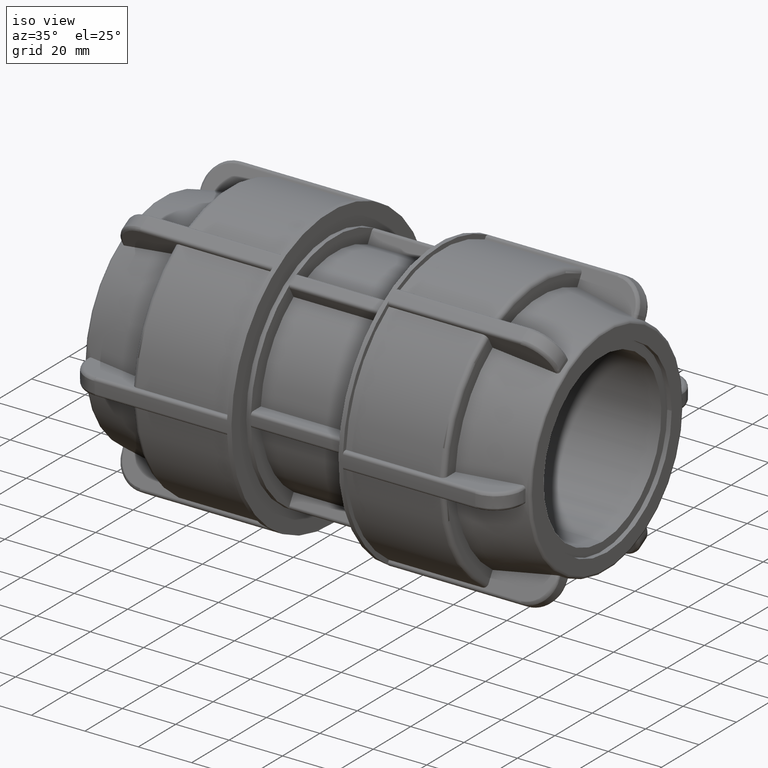
[diagram: clean part render]
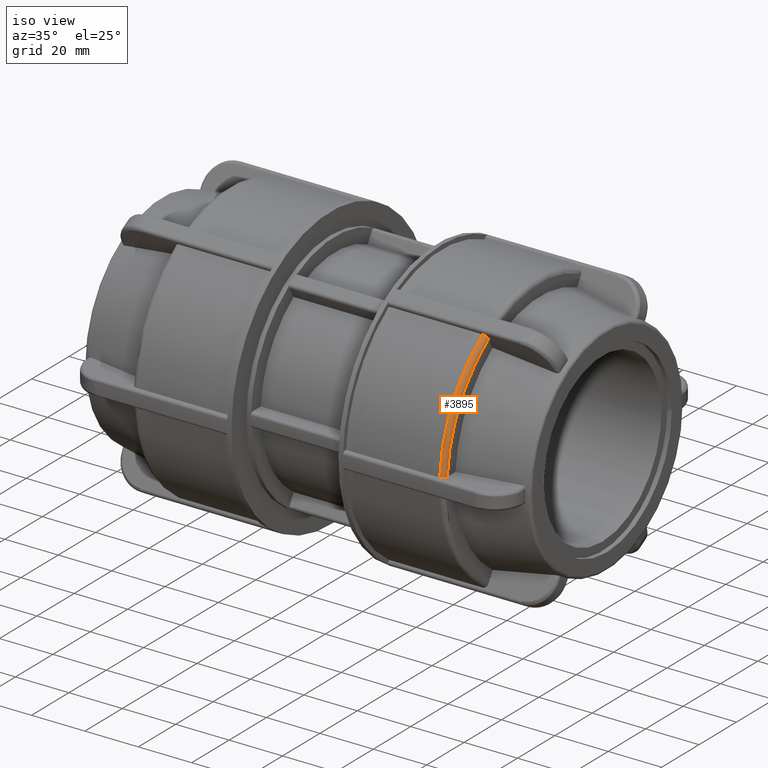
[diagram: same view with one face highlighted and labeled with its STEP entity id]
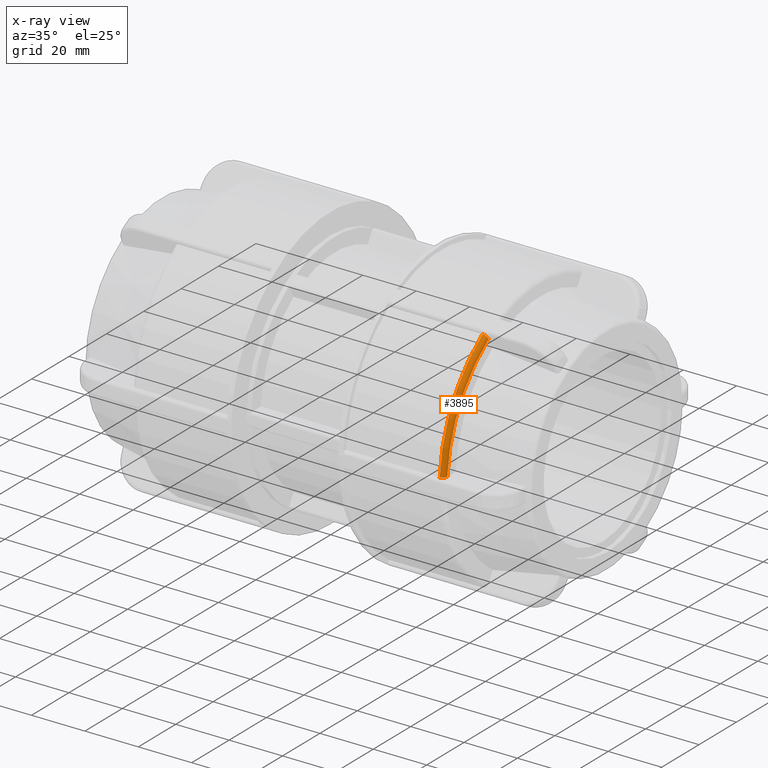
[diagram: x-ray of the same camera — body ghosted, the highlighted face saturated]
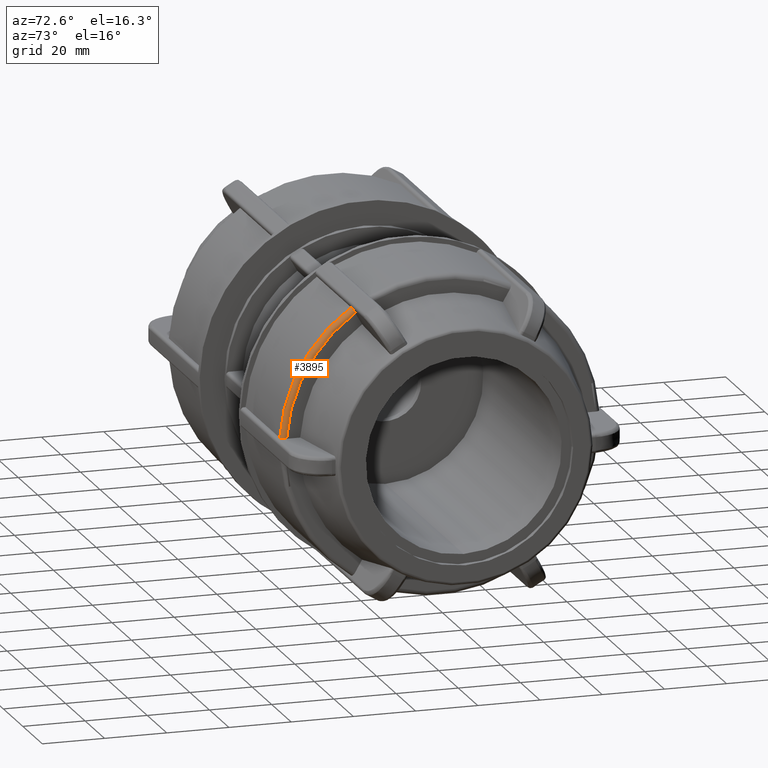
[diagram: same view with one face highlighted and labeled with its STEP entity id]
A machine part, iso view. The second image highlights one B-rep face of the part: STEP entity #3895.
The next image is the same camera in x-ray: the body ghosted, the highlighted face saturated — about 0% of this face is hidden behind the body in this view.
A second angle (auxiliary view) of the same face is appended — the face is thin or edge-on in the first view.
In plain terms, the highlighted toroidal blend (fillet) surface has major radius 49.74 mm and minor (blend) radius 1.67 mm.
Its self-contained STEP definition (entity closure, byte-faithful):
#37=TOROIDAL_SURFACE('',#4320,49.74,1.67);
#142=B_SPLINE_CURVE_WITH_KNOTS('',3,(#7609,#7610,#7611,#7612,#7613,#7614,
#7615,#7616,#7617,#7618),.UNSPECIFIED.,.F.,.F.,(4,2,2,2,4),(-0.247562626783386,
-0.185570297774529,-0.123644029369259,-0.0617922903017217,0.),
 .UNSPECIFIED.);
#152=B_SPLINE_CURVE_WITH_KNOTS('',3,(#7837,#7838,#7839,#7840,#7841,#7842,
#7843,#7844,#7845,#7846),.UNSPECIFIED.,.F.,.F.,(4,2,2,2,4),(0.,0.0617922903017208,
0.123644029369258,0.185570297774529,0.247562626783386),.UNSPECIFIED.);
#509=FACE_OUTER_BOUND('',#761,.T.);
#761=EDGE_LOOP('',(#3464,#3465,#3466,#3467));
#1456=CIRCLE('',#4309,51.41);
#1462=CIRCLE('',#4321,49.74);
#1796=VERTEX_POINT('',#7606);
#1797=VERTEX_POINT('',#7608);
#1824=VERTEX_POINT('',#7834);
#1825=VERTEX_POINT('',#7836);
#2330=EDGE_CURVE('',#1797,#1796,#142,.T.);
#2370=EDGE_CURVE('',#1825,#1824,#152,.T.);
#2397=EDGE_CURVE('',#1796,#1825,#1456,.T.);
#2405=EDGE_CURVE('',#1824,#1797,#1462,.T.);
#3464=ORIENTED_EDGE('',*,*,#2370,.T.);
#3465=ORIENTED_EDGE('',*,*,#2405,.T.);
#3466=ORIENTED_EDGE('',*,*,#2330,.T.);
#3467=ORIENTED_EDGE('',*,*,#2397,.T.);
#3895=ADVANCED_FACE('',(#509),#37,.T.);
#4309=AXIS2_PLACEMENT_3D('',#7923,#5356,#5357);
#4320=AXIS2_PLACEMENT_3D('',#7947,#5379,#5380);
#4321=AXIS2_PLACEMENT_3D('',#7948,#5381,#5382);
#5356=DIRECTION('center_axis',(1.,3.06161699786838E-16,0.));
#5357=DIRECTION('ref_axis',(3.07735423087113E-16,-1.,1.83697019872103E-16));
#5379=DIRECTION('center_axis',(1.,3.06161699786838E-16,0.));
#5380=DIRECTION('ref_axis',(0.,0.,-1.));
#5381=DIRECTION('center_axis',(-1.,-3.06161699786838E-16,0.));
#5382=DIRECTION('ref_axis',(3.06161699786838E-16,-1.,1.83697019872103E-16));
#7606=CARTESIAN_POINT('',(56.78,-28.3846828498371,42.8637128526469));
#7608=CARTESIAN_POINT('',(58.45,-27.5480580838449,41.414636251078));
#7609=CARTESIAN_POINT('Ctrl Pts',(58.45,-27.5480580838449,41.414636251078));
#7610=CARTESIAN_POINT('Ctrl Pts',(58.45,-27.651378632193,41.5935926902828));
#7611=CARTESIAN_POINT('Ctrl Pts',(58.4016935444586,-27.772987912316,41.8042261421276));
#7612=CARTESIAN_POINT('Ctrl Pts',(58.2437741301792,-27.9638292517297,42.1347730381766));
#7613=CARTESIAN_POINT('Ctrl Pts',(58.1062949093139,-28.0668550583607,42.3132189697523));
#7614=CARTESIAN_POINT('Ctrl Pts',(57.8147156802085,-28.2128129567598,42.5660254655455));
#7615=CARTESIAN_POINT('Ctrl Pts',(57.609094446604,-28.2816063254478,42.685179075337));
#7616=CARTESIAN_POINT('Ctrl Pts',(57.2283814630195,-28.3605407597446,42.8218975260057));
#7617=CARTESIAN_POINT('Ctrl Pts',(56.9859743010058,-28.3846828498371,42.8637128526469));
#7618=CARTESIAN_POINT('Ctrl Pts',(56.78,-28.3846828498371,42.8637128526469));
#7834=CARTESIAN_POINT('',(58.45,-49.640156123848,3.15000000000002));
#7836=CARTESIAN_POINT('',(56.78,-51.3134056558323,3.15000000000002));
#7837=CARTESIAN_POINT('Ctrl Pts',(56.78,-51.3134056558323,3.15000000000002));
#7838=CARTESIAN_POINT('Ctrl Pts',(56.9859743010058,-51.3134056558323,3.15000000000002));
#7839=CARTESIAN_POINT('Ctrl Pts',(57.2283814630195,-51.2651214756472,3.15000000000002));
#7840=CARTESIAN_POINT('Ctrl Pts',(57.609094446604,-51.1072526070537,3.15000000000002));
#7841=CARTESIAN_POINT('Ctrl Pts',(57.8147156802085,-50.9696658696776,3.15000000000002));
#7842=CARTESIAN_POINT('Ctrl Pts',(58.1062949093139,-50.6777500728795,3.15000000000002));
#7843=CARTESIAN_POINT('Ctrl Pts',(58.2437741301792,-50.4716984596174,3.15000000000002));
#7844=CARTESIAN_POINT('Ctrl Pts',(58.4016935444586,-50.0900157807901,3.15000000000002));
#7845=CARTESIAN_POINT('Ctrl Pts',(58.4500000000001,-49.8467972205441,3.15000000000002));
#7846=CARTESIAN_POINT('Ctrl Pts',(58.4500000000001,-49.640156123848,3.15000000000002));
#7923=CARTESIAN_POINT('Origin',(56.78,1.73838613138967E-14,0.));
#7947=CARTESIAN_POINT('Origin',(56.78,1.73838613138967E-14,0.));
#7948=CARTESIAN_POINT('Origin',(58.45,1.78951513525407E-14,0.));